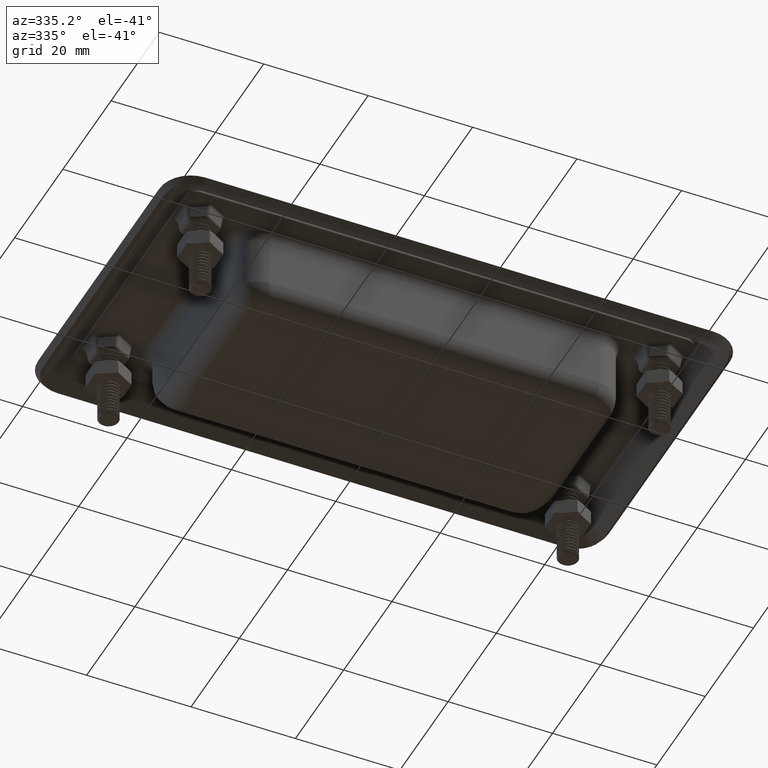
[diagram: clean part render]
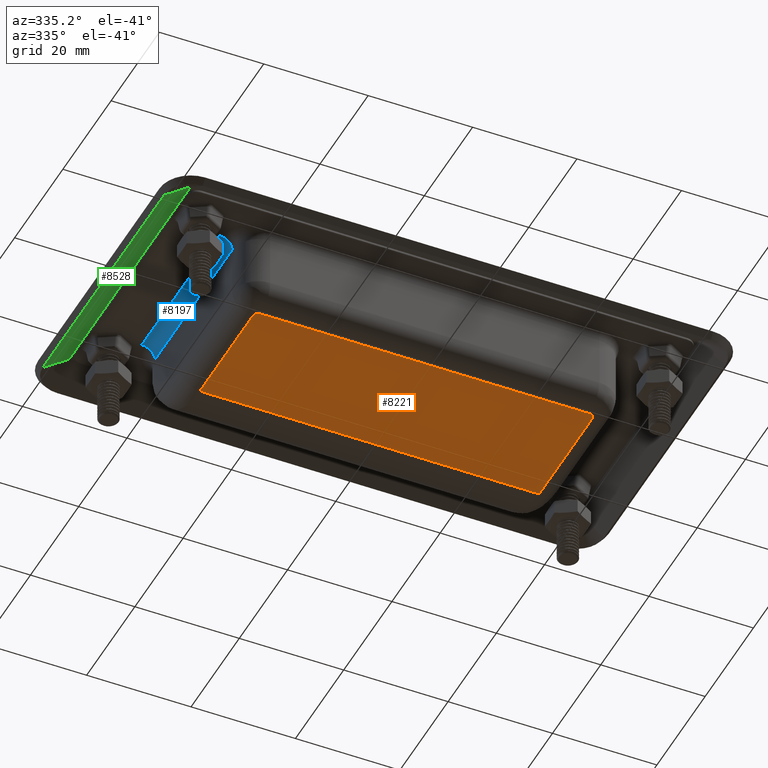
[diagram: same view with three faces highlighted in distinct colors, each labeled with its STEP entity id]
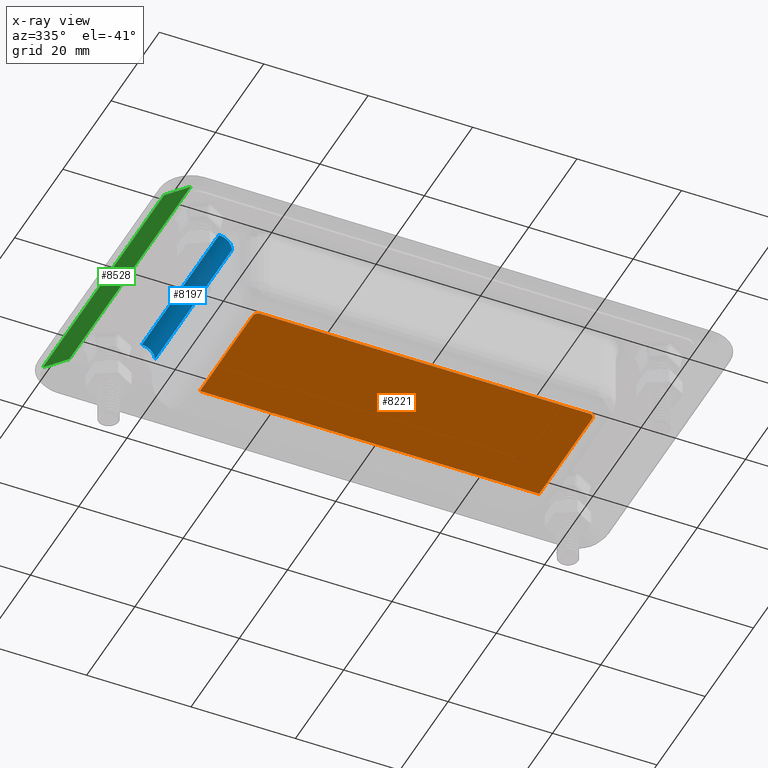
[diagram: x-ray of the same camera — body ghosted, the three highlighted faces saturated]
A machine part, auxiliary view with three faces highlighted in distinct colors.
The next image is the same camera in x-ray (body ghosted, the three faces saturated) — at least one of them is partly hidden behind the body in this view.
Their STEP definitions:

[orange] entity #8221 — the highlighted planar face has unit normal (0, 0, -1).
#365=CIRCLE('',#8845,0.999999999999999);
#376=CIRCLE('',#8861,0.999999999999999);
#952=FACE_OUTER_BOUND('',#1472,.T.);
#1472=EDGE_LOOP('',(#6262,#6263,#6264,#6265,#6266,#6267));
#2067=LINE('',#14459,#2625);
#2068=LINE('',#14476,#2626);
#2072=LINE('',#14659,#2630);
#2075=LINE('',#14675,#2633);
#2625=VECTOR('',#10022,63.);
#2626=VECTOR('',#10033,22.);
#2630=VECTOR('',#10063,22.);
#2633=VECTOR('',#10074,65.);
#3706=VERTEX_POINT('',#14456);
#3707=VERTEX_POINT('',#14458);
#3708=VERTEX_POINT('',#14470);
#3709=VERTEX_POINT('',#14474);
#3717=VERTEX_POINT('',#14650);
#3719=VERTEX_POINT('',#14656);
#4616=EDGE_CURVE('',#3706,#3707,#2067,.T.);
#4619=EDGE_CURVE('',#3707,#3708,#365,.T.);
#4621=EDGE_CURVE('',#3708,#3709,#2068,.T.);
#4638=EDGE_CURVE('',#3717,#3719,#2072,.T.);
#4639=EDGE_CURVE('',#3719,#3706,#376,.T.);
#4642=EDGE_CURVE('',#3717,#3709,#2075,.T.);
#6262=ORIENTED_EDGE('',*,*,#4621,.F.);
#6263=ORIENTED_EDGE('',*,*,#4619,.F.);
#6264=ORIENTED_EDGE('',*,*,#4616,.F.);
#6265=ORIENTED_EDGE('',*,*,#4639,.F.);
#6266=ORIENTED_EDGE('',*,*,#4638,.F.);
#6267=ORIENTED_EDGE('',*,*,#4642,.T.);
#7972=PLANE('',#8864);
#8221=ADVANCED_FACE('',(#952),#7972,.T.);
#8845=AXIS2_PLACEMENT_3D('',#14472,#10027,#10028);
#8861=AXIS2_PLACEMENT_3D('',#14669,#10064,#10065);
#8864=AXIS2_PLACEMENT_3D('',#14674,#10072,#10073);
#10022=DIRECTION('',(1.,0.,0.));
#10027=DIRECTION('center_axis',(0.,-3.7470027081099E-16,1.));
#10028=DIRECTION('ref_axis',(0.707106781186548,-0.707106781186547,-2.64953102402887E-16));
#10033=DIRECTION('',(0.,1.,3.7470027081099E-16));
#10063=DIRECTION('',(0.,-1.,-3.7470027081099E-16));
#10064=DIRECTION('center_axis',(0.,-3.7470027081099E-16,1.));
#10065=DIRECTION('ref_axis',(-0.707106781186548,-0.707106781186547,-2.64953102402887E-16));
#10072=DIRECTION('center_axis',(0.,3.7470027081099E-16,-1.));
#10073=DIRECTION('ref_axis',(0.,1.,0.));
#10074=DIRECTION('',(1.,0.,0.));
#14456=CARTESIAN_POINT('',(-31.5,-17.,-61.2));
#14458=CARTESIAN_POINT('',(31.5,-17.,-61.2));
#14459=CARTESIAN_POINT('',(0.,-17.,-61.2));
#14470=CARTESIAN_POINT('',(32.5,-16.,-61.2));
#14472=CARTESIAN_POINT('Origin',(31.5,-16.,-61.2));
#14474=CARTESIAN_POINT('',(32.5,6.,-61.2));
#14476=CARTESIAN_POINT('',(32.5,-10.5,-61.2));
#14650=CARTESIAN_POINT('',(-32.5,6.,-61.2));
#14656=CARTESIAN_POINT('',(-32.5,-16.,-61.2));
#14659=CARTESIAN_POINT('',(-32.5,-10.5,-61.2));
#14669=CARTESIAN_POINT('Origin',(-31.5,-16.,-61.2));
#14674=CARTESIAN_POINT('Origin',(0.,-21.,-61.2));
#14675=CARTESIAN_POINT('',(0.,6.,-61.2));

[blue] entity #8197 — the highlighted cylindrical surface (edge-blend (fillet) strip) has radius 2.5 mm, axis along (0, -1, -0).
#341=CIRCLE('',#8808,2.5);
#343=CIRCLE('',#8811,2.5);
#649=CYLINDRICAL_SURFACE('',#8810,2.5);
#928=FACE_OUTER_BOUND('',#1443,.T.);
#1443=EDGE_LOOP('',(#6104,#6105,#6106,#6107));
#2024=LINE('',#14143,#2582);
#2025=LINE('',#14144,#2583);
#2582=VECTOR('',#9917,32.);
#2583=VECTOR('',#9918,32.);
#3630=VERTEX_POINT('',#14134);
#3631=VERTEX_POINT('',#14136);
#3632=VERTEX_POINT('',#14140);
#3633=VERTEX_POINT('',#14141);
#4527=EDGE_CURVE('',#3630,#3631,#341,.T.);
#4529=EDGE_CURVE('',#3632,#3633,#343,.T.);
#4530=EDGE_CURVE('',#3633,#3631,#2024,.T.);
#4531=EDGE_CURVE('',#3630,#3632,#2025,.T.);
#6104=ORIENTED_EDGE('',*,*,#4529,.T.);
#6105=ORIENTED_EDGE('',*,*,#4530,.T.);
#6106=ORIENTED_EDGE('',*,*,#4527,.F.);
#6107=ORIENTED_EDGE('',*,*,#4531,.T.);
#8197=ADVANCED_FACE('',(#928),#649,.F.);
#8808=AXIS2_PLACEMENT_3D('',#14137,#9909,#9910);
#8810=AXIS2_PLACEMENT_3D('',#14139,#9913,#9914);
#8811=AXIS2_PLACEMENT_3D('',#14142,#9915,#9916);
#9909=DIRECTION('center_axis',(0.,1.,3.7470027081099E-16));
#9910=DIRECTION('ref_axis',(0.,-3.7470027081099E-16,1.));
#9913=DIRECTION('center_axis',(0.,-1.,-3.7470027081099E-16));
#9914=DIRECTION('ref_axis',(0.707106781186548,-2.64953102402887E-16,0.707106781186548));
#9915=DIRECTION('center_axis',(0.,1.,3.7470027081099E-16));
#9916=DIRECTION('ref_axis',(0.,-3.7470027081099E-16,1.));
#9917=DIRECTION('',(0.,-1.,-3.7470027081099E-16));
#9918=DIRECTION('',(0.,1.,3.7470027081099E-16));
#14134=CARTESIAN_POINT('',(-39.,-16.,-45.));
#14136=CARTESIAN_POINT('',(-36.5,-16.,-47.5));
#14137=CARTESIAN_POINT('Origin',(-39.,-16.,-47.5));
#14139=CARTESIAN_POINT('Origin',(-39.,-2.07125983031631E-14,-47.5));
#14140=CARTESIAN_POINT('',(-39.,16.,-45.));
#14141=CARTESIAN_POINT('',(-36.5,16.,-47.5));
#14142=CARTESIAN_POINT('Origin',(-39.,16.,-47.5));
#14143=CARTESIAN_POINT('',(-36.5,-2.07125983031631E-14,-47.5));
#14144=CARTESIAN_POINT('',(-39.,-2.16493489801905E-14,-45.));

[green] entity #8528 — the highlighted planar face has unit normal (0.5972, 0, -0.8021).
#1259=FACE_OUTER_BOUND('',#1792,.T.);
#1792=EDGE_LOOP('',(#7503,#7504,#7505,#7506));
#2361=LINE('',#21440,#2919);
#2362=LINE('',#21443,#2920);
#2363=LINE('',#21445,#2921);
#2364=LINE('',#21446,#2922);
#2919=VECTOR('',#11056,50.3);
#2920=VECTOR('',#11059,6.36344725028061);
#2921=VECTOR('',#11060,6.36344725028053);
#2922=VECTOR('',#11061,50.3);
#3990=VERTEX_POINT('',#21436);
#3991=VERTEX_POINT('',#21438);
#3992=VERTEX_POINT('',#21442);
#3993=VERTEX_POINT('',#21444);
#5203=EDGE_CURVE('',#3990,#3991,#2361,.T.);
#5204=EDGE_CURVE('',#3992,#3990,#2362,.T.);
#5205=EDGE_CURVE('',#3993,#3991,#2363,.T.);
#5206=EDGE_CURVE('',#3992,#3993,#2364,.T.);
#7503=ORIENTED_EDGE('',*,*,#5204,.T.);
#7504=ORIENTED_EDGE('',*,*,#5203,.T.);
#7505=ORIENTED_EDGE('',*,*,#5205,.F.);
#7506=ORIENTED_EDGE('',*,*,#5206,.F.);
#8054=PLANE('',#9213);
#8528=ADVANCED_FACE('',(#1259),#8054,.T.);
#9213=AXIS2_PLACEMENT_3D('',#21441,#11057,#11058);
#11056=DIRECTION('',(0.,1.,0.));
#11057=DIRECTION('center_axis',(0.597160603450035,0.,-0.802121695060787));
#11058=DIRECTION('ref_axis',(-0.802121695060786,0.,-0.597160603450037));
#11059=DIRECTION('',(-0.802121695060787,1.58460479553912E-15,-0.597160603450035));
#11060=DIRECTION('',(-0.802121695060787,0.,-0.597160603450035));
#11061=DIRECTION('',(0.,1.,0.));
#21436=CARTESIAN_POINT('',(-53.754259094825,-25.15,-5.3));
#21438=CARTESIAN_POINT('',(-53.7542590948249,25.15,-5.3));
#21440=CARTESIAN_POINT('',(-53.7542590948249,0.,-5.3));
#21441=CARTESIAN_POINT('Origin',(-48.65,-25.15,-1.5));
#21442=CARTESIAN_POINT('',(-48.65,-25.15,-1.5));
#21443=CARTESIAN_POINT('',(-48.65,-25.15,-1.5));
#21444=CARTESIAN_POINT('',(-48.65,25.15,-1.5));
#21445=CARTESIAN_POINT('',(-48.65,25.15,-1.5));
#21446=CARTESIAN_POINT('',(-48.65,0.,-1.5));